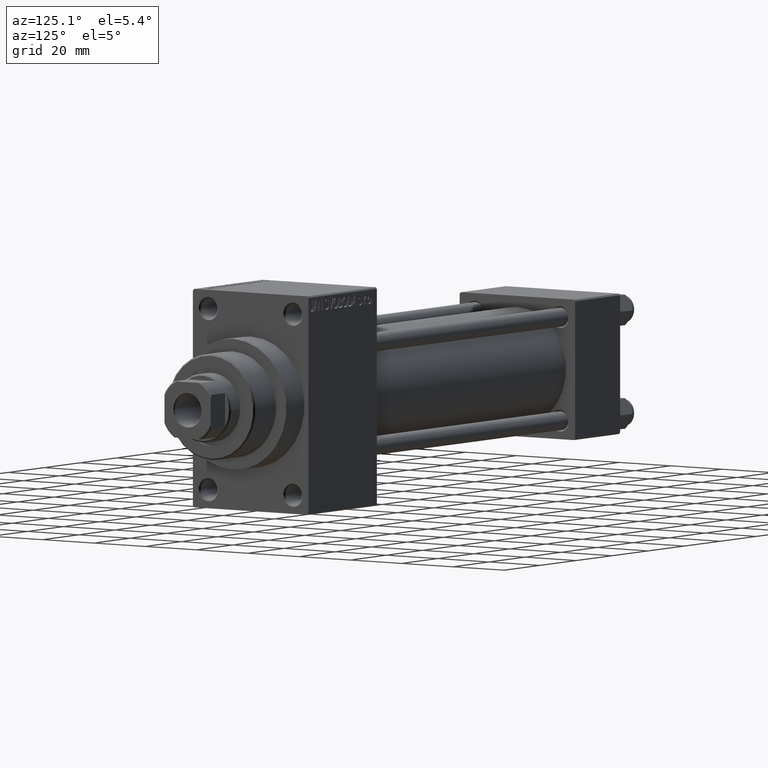
[diagram: clean part render]
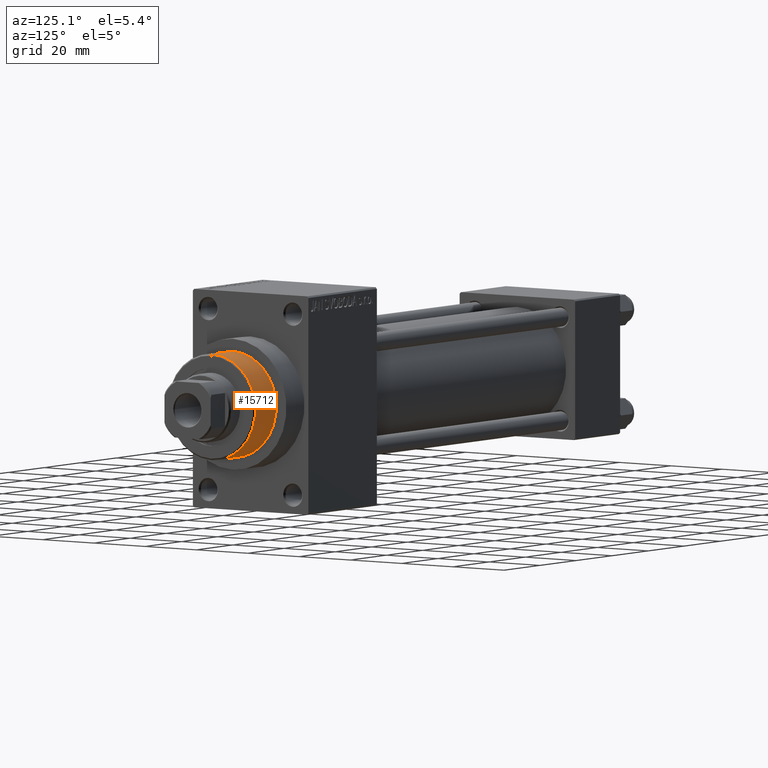
[diagram: same view with one face highlighted and labeled with its STEP entity id]
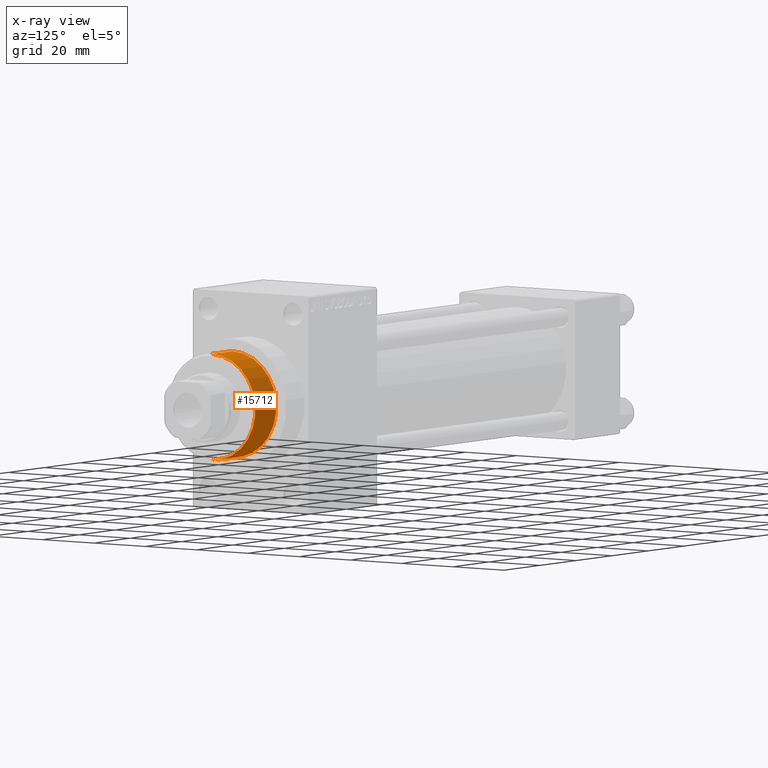
[diagram: x-ray of the same camera — body ghosted, the highlighted face saturated]
A machine part, auxiliary view. The second image highlights one B-rep face of the part: STEP entity #15712.
The next image is the same camera in x-ray: the body ghosted, the highlighted face saturated — about 0% of this face is hidden behind the body in this view.
In plain terms, the highlighted cylindrical surface (partial cylindrical patch) has radius 17 mm, axis along (-1, 0, 0).
Its self-contained STEP definition (entity closure, byte-faithful):
#1351 = EDGE_CURVE ( 'NONE', #26431, #28402, #29823, .T. ) ;
#3148 = VECTOR ( 'NONE', #11007, 1000.000000000000000 ) ;
#4095 = CARTESIAN_POINT ( 'NONE',  ( -17.00000000000000000, 0.000000000000000000, 55.26000000000000512 ) ) ;
#5624 = LINE ( 'NONE', #38017, #26293 ) ;
#6515 = AXIS2_PLACEMENT_3D ( 'NONE', #43027, #6810, #12631 ) ;
#6810 = DIRECTION ( 'NONE',  ( -0.000000000000000000, -0.000000000000000000, -1.000000000000000000 ) ) ;
#11007 = DIRECTION ( 'NONE',  ( -0.000000000000000000, -0.000000000000000000, -1.000000000000000000 ) ) ;
#12069 = CARTESIAN_POINT ( 'NONE',  ( 17.00000000000000000, 2.081899558550500280E-15, 43.25999999999999801 ) ) ;
#12350 = CARTESIAN_POINT ( 'NONE',  ( 17.00000000000000000, 2.081899558550500280E-15, 54.76000000000001222 ) ) ;
#12631 = DIRECTION ( 'NONE',  ( -1.000000000000000000, 0.000000000000000000, 0.000000000000000000 ) ) ;
#12700 = EDGE_CURVE ( 'NONE', #26431, #32752, #5624, .T. ) ;
#13814 = CARTESIAN_POINT ( 'NONE',  ( -17.00000000000000000, 0.000000000000000000, 54.76000000000001222 ) ) ;
#15712 = ADVANCED_FACE ( 'NONE', ( #17294 ), #16434, .T. ) ;
#16434 = CYLINDRICAL_SURFACE ( 'NONE', #6515, 17.00000000000000000 ) ;
#16575 = DIRECTION ( 'NONE',  ( -0.000000000000000000, -0.000000000000000000, -1.000000000000000000 ) ) ;
#17294 = FACE_OUTER_BOUND ( 'NONE', #30528, .T. ) ;
#22189 = CIRCLE ( 'NONE', #39670, 17.00000000000000000 ) ;
#24129 = DIRECTION ( 'NONE',  ( 1.000000000000000000, 0.000000000000000000, 0.000000000000000000 ) ) ;
#24370 = DIRECTION ( 'NONE',  ( 0.000000000000000000, 0.000000000000000000, -1.000000000000000000 ) ) ;
#26293 = VECTOR ( 'NONE', #16575, 1000.000000000000000 ) ;
#26431 = VERTEX_POINT ( 'NONE', #12350 ) ;
#27485 = CARTESIAN_POINT ( 'NONE',  ( 0.000000000000000000, 0.000000000000000000, 54.76000000000001222 ) ) ;
#28402 = VERTEX_POINT ( 'NONE', #13814 ) ;
#29330 = LINE ( 'NONE', #4095, #3148 ) ;
#29760 = ORIENTED_EDGE ( 'NONE', *, *, #1351, .T. ) ;
#29823 = CIRCLE ( 'NONE', #31344, 17.00000000000000000 ) ;
#30528 = EDGE_LOOP ( 'NONE', ( #34683, #29760, #45309, #37098 ) ) ;
#31344 = AXIS2_PLACEMENT_3D ( 'NONE', #27485, #24370, #39158 ) ;
#32752 = VERTEX_POINT ( 'NONE', #12069 ) ;
#34683 = ORIENTED_EDGE ( 'NONE', *, *, #12700, .F. ) ;
#37098 = ORIENTED_EDGE ( 'NONE', *, *, #39628, .T. ) ;
#38017 = CARTESIAN_POINT ( 'NONE',  ( 17.00000000000000000, 2.081899558550500280E-15, 55.26000000000000512 ) ) ;
#38915 = CARTESIAN_POINT ( 'NONE',  ( 0.000000000000000000, 0.000000000000000000, 43.25999999999999801 ) ) ;
#39158 = DIRECTION ( 'NONE',  ( 1.000000000000000000, 0.000000000000000000, 0.000000000000000000 ) ) ;
#39628 = EDGE_CURVE ( 'NONE', #40281, #32752, #22189, .T. ) ;
#39670 = AXIS2_PLACEMENT_3D ( 'NONE', #38915, #42030, #24129 ) ;
#40281 = VERTEX_POINT ( 'NONE', #44740 ) ;
#42030 = DIRECTION ( 'NONE',  ( 0.000000000000000000, 0.000000000000000000, 1.000000000000000000 ) ) ;
#42880 = EDGE_CURVE ( 'NONE', #28402, #40281, #29330, .T. ) ;
#43027 = CARTESIAN_POINT ( 'NONE',  ( 0.000000000000000000, 0.000000000000000000, 55.26000000000000512 ) ) ;
#44740 = CARTESIAN_POINT ( 'NONE',  ( -17.00000000000000000, 0.000000000000000000, 43.25999999999999801 ) ) ;
#45309 = ORIENTED_EDGE ( 'NONE', *, *, #42880, .T. ) ;